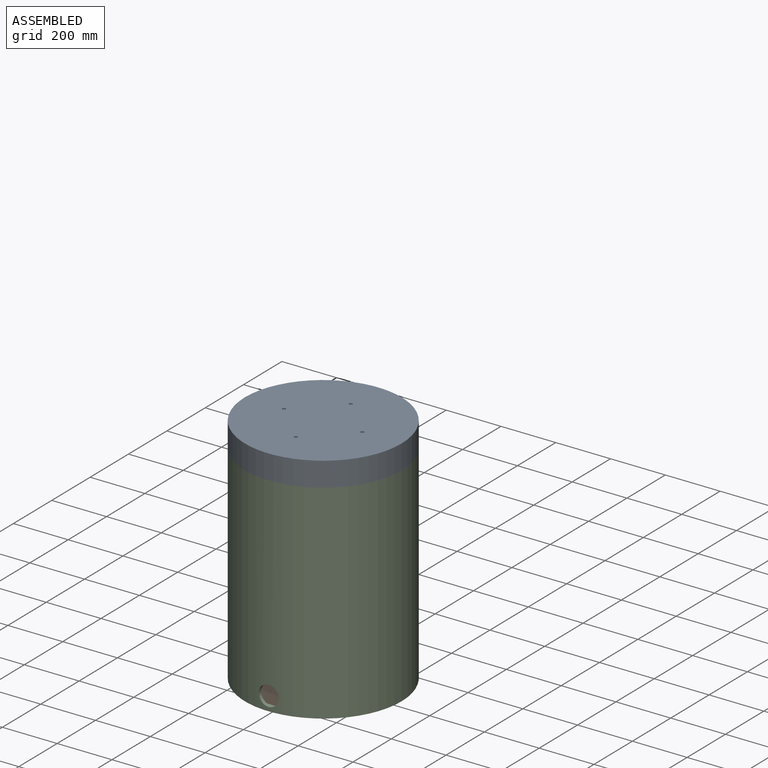
[diagram: assembled view]
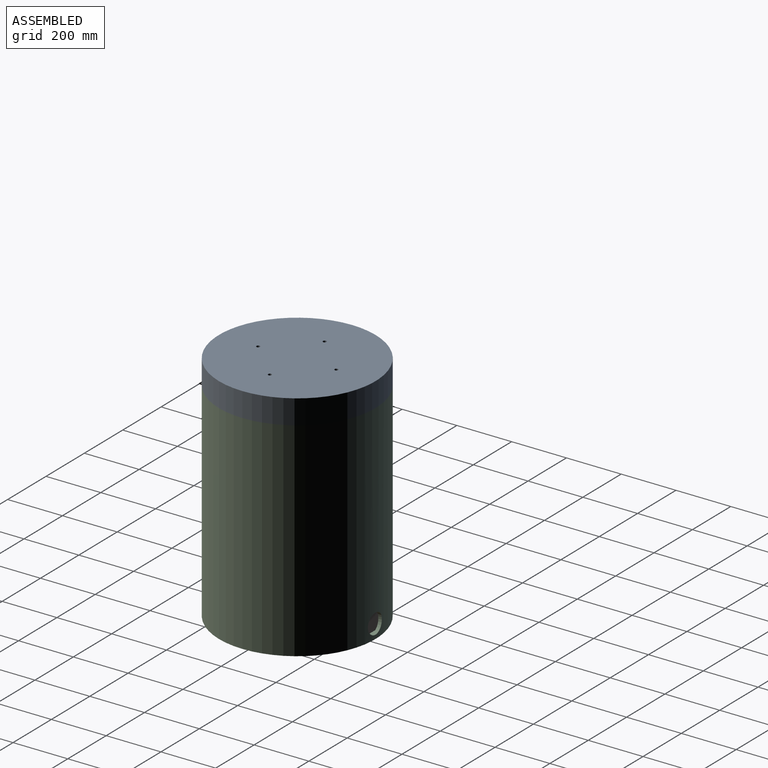
[diagram: assembled view, second angle]
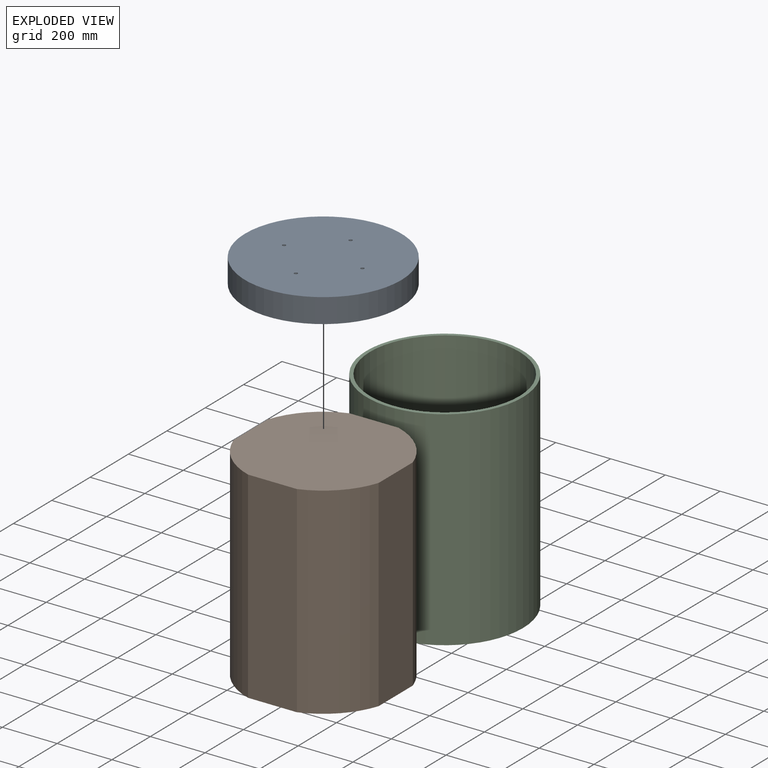
[diagram: exploded view]
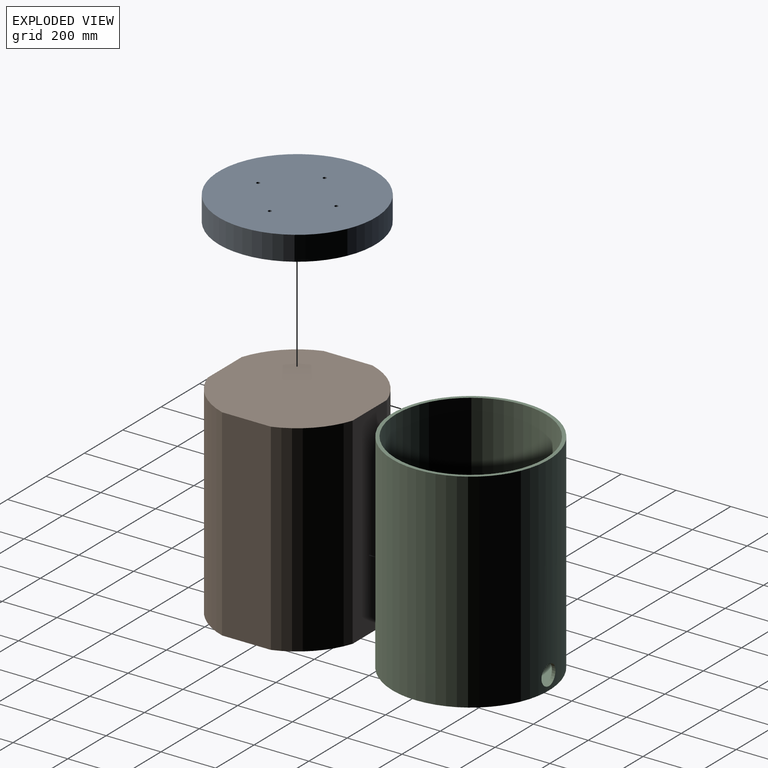
[diagram: exploded view, second angle]
ASSEMBLY  parts=3 mates=2
PART A: 9 faces, bbox 571.5x571.5x88.9 mm
  f0: cylinder r=6.35mm len=12.7mm, axis (0,0,-1), area 506.7mm2, adj f5,f8
  f1: cylinder r=6.35mm len=12.7mm, axis (0,0,-1), area 506.7mm2, adj f5,f8
  f2: cylinder r=6.35mm len=12.7mm, axis (0,0,-1), area 506.7mm2, adj f5,f8
  f3: cylinder r=6.35mm len=12.7mm, axis (0,0,-1), area 506.7mm2, adj f5,f8
  f4: cylinder r=285.75mm len=571.5mm, axis (0,0,-1), area 159612.9mm2, adj f5,f6
  f5: plane 571.5x571.5mm, normal (0,0,1), area 256014mm2, adj f0,f1,f2,f3,f4
  f6: plane 571.5x571.5mm, normal (0,0,-1), area 22295.1mm2, adj f4,f7
  f7: cylinder r=273.05mm len=546.1mm, axis (0,0,-1), area 130730.5mm2, adj f6,f8
  f8: plane 546.1x546.1mm, normal (0,0,-1), area 233718.8mm2, adj f0,f1,f2,f3,f7
PART B: 10 faces, bbox 529.6x529.6x736.6 mm
  f0: cylinder r=279.4mm len=736.6mm, axis (0,0,-1), area 189620.6mm2, adj f4,f5,f6,f9
  f1: cylinder r=279.4mm len=736.6mm, axis (0,0,-1), area 189620.6mm2, adj f4,f5,f8,f9
  f2: cylinder r=279.4mm len=736.6mm, axis (0,0,-1), area 189620.6mm2, adj f4,f5,f7,f8
  f3: cylinder r=279.4mm len=736.6mm, axis (0,0,-1), area 189620.6mm2, adj f4,f5,f6,f7
  f4: plane 529.6x529.6mm, normal (0,0,1), area 238267.5mm2, adj f0,f1,f2,f3,f6,f7,f8,f9
  f5: plane 529.6x529.6mm, normal (0,0,-1), area 238267.5mm2, adj f0,f1,f2,f3,f6,f7,f8,f9
  f6: plane 736.6x178.28mm, normal (1,0,0), area 131322.2mm2, adj f0,f3,f4,f5
  f7: plane 736.6x178.28mm, normal (0,-1,0), area 131322.2mm2, adj f2,f3,f4,f5
  f8: plane 736.6x178.28mm, normal (-1,0,0), area 131322.2mm2, adj f1,f2,f4,f5
  f9: plane 736.6x178.28mm, normal (0,1,0), area 131322.2mm2, adj f0,f1,f4,f5
PART C: 7 faces, bbox 571.5x571.5x762 mm
  f0: cylinder r=285.75mm len=762mm, axis (0,0,-1), area 1359664.8mm2, adj f2,f3,f5,f6
  f1: cylinder r=273.05mm len=749.3mm, axis (0,0,-1), area 1277069.5mm2, adj f2,f4,f5,f6
  f2: plane 571.5x571.5mm, normal (0,0,1), area 22295.1mm2, adj f0,f1
  f3: plane 571.5x571.5mm, normal (0,0,-1), area 256520.7mm2, adj f0
  f4: plane 546.1x546.1mm, normal (0,0,1), area 234225.5mm2, adj f1
  f5: cylinder r=36.51mm len=73.03mm, axis (0,1,0), area 2926.1mm2, adj f0,f1
  f6: cylinder r=36.51mm len=73.03mm, axis (0,-1,0), area 2926.1mm2, adj f0,f1
PLACE A t=(8.86,-396.22,704.4)mm
PLACE B rot(axis=(0.71,-0.71,0),180deg) t=(8.86,-396.22,691.7)mm
PLACE C t=(8.86,-396.22,-57.6)mm
MATE fastened A.f4 <-> C.f0  axis (0,0,-1) through (8.86,-396.22,704.4)mm
MATE fastened B.f0 <-> C.f0  axis (0,0,-1) through (8.86,-396.22,-44.9)mm
